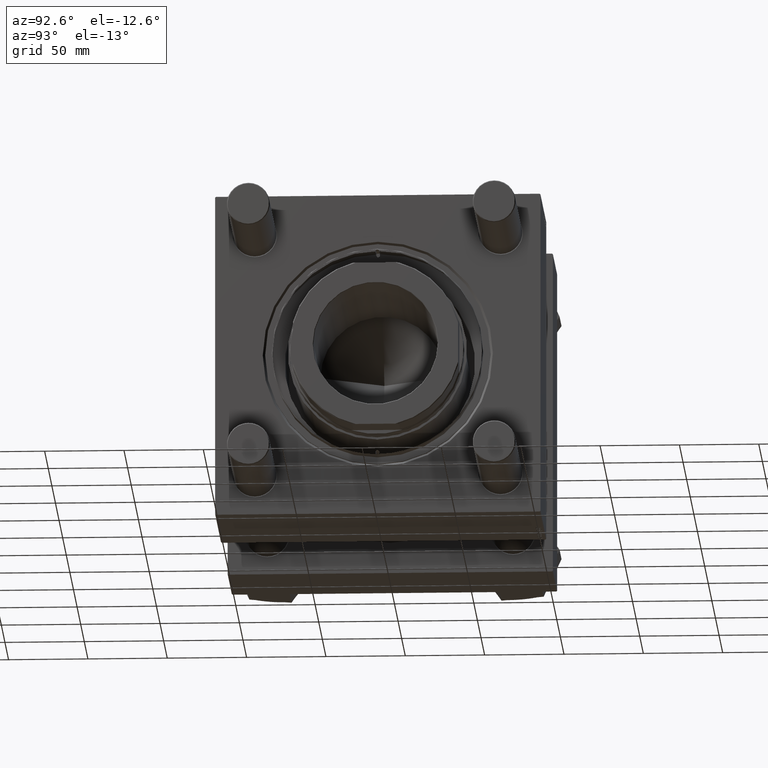
[diagram: clean part render]
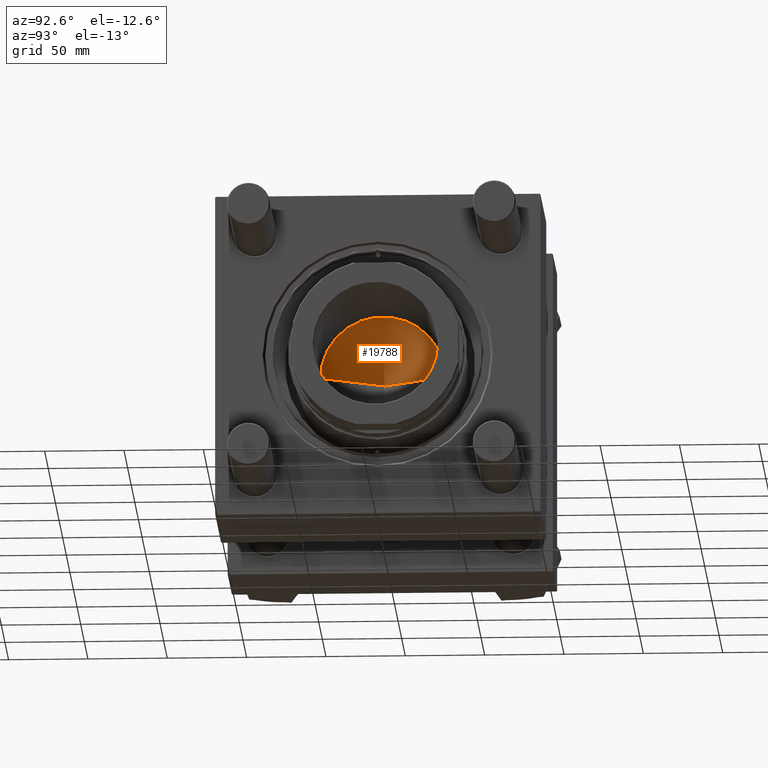
[diagram: same view with one face highlighted and labeled with its STEP entity id]
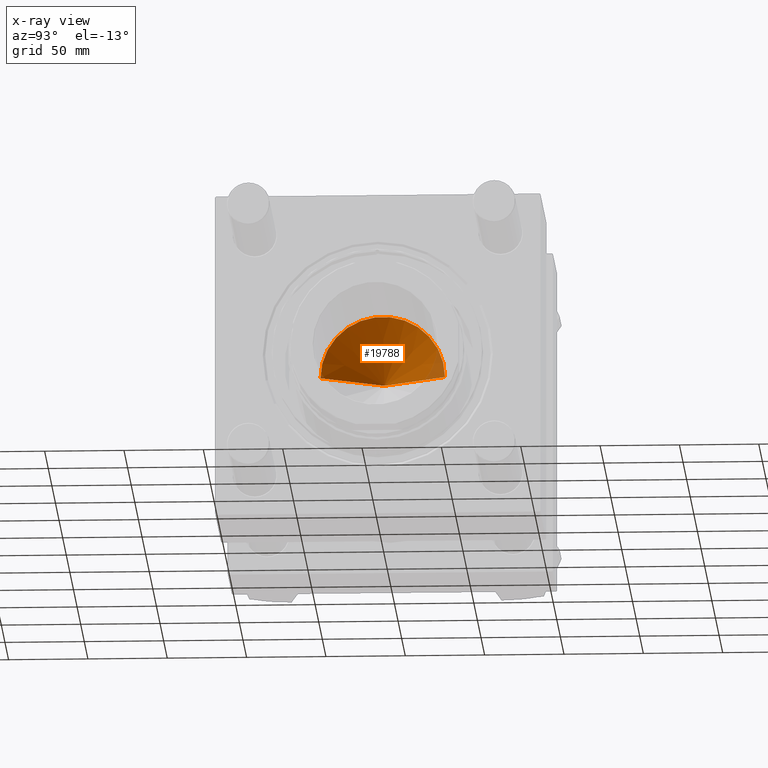
[diagram: x-ray of the same camera — body ghosted, the highlighted face saturated]
A machine part, auxiliary view. The second image highlights one B-rep face of the part: STEP entity #19788.
The next image is the same camera in x-ray: the body ghosted, the highlighted face saturated — about 5% of this face is hidden behind the body in this view.
In plain terms, the highlighted conical surface has half-angle 59 deg.
Its self-contained STEP definition (entity closure, byte-faithful):
#355 = CIRCLE ( 'NONE', #54068, 39.24999999999998579 ) ;
#2454 = ORIENTED_EDGE ( 'NONE', *, *, #3295, .F. ) ;
#3295 = EDGE_CURVE ( 'NONE', #25425, #52546, #27053, .T. ) ;
#4125 = DIRECTION ( 'NONE',  ( 0.8571673007021116675, 0.000000000000000000, 0.5150380749100552658 ) ) ;
#5022 = CARTESIAN_POINT ( 'NONE',  ( -39.24999999999998579, 4.806738686653360087E-15, 104.9999999999999858 ) ) ;
#7115 = DIRECTION ( 'NONE',  ( -0.000000000000000000, -0.000000000000000000, 1.000000000000000000 ) ) ;
#7581 = DIRECTION ( 'NONE',  ( 1.000000000000000000, 0.000000000000000000, 0.000000000000000000 ) ) ;
#7921 = AXIS2_PLACEMENT_3D ( 'NONE', #11475, #7115, #28602 ) ;
#8791 = CARTESIAN_POINT ( 'NONE',  ( 39.24999999999998579, 0.000000000000000000, 104.9999999999999858 ) ) ;
#11475 = CARTESIAN_POINT ( 'NONE',  ( 0.000000000000000000, 0.000000000000000000, 104.9999999999999858 ) ) ;
#11932 = DIRECTION ( 'NONE',  ( -0.000000000000000000, -0.000000000000000000, 1.000000000000000000 ) ) ;
#13912 = VERTEX_POINT ( 'NONE', #5022 ) ;
#15031 = EDGE_CURVE ( 'NONE', #13912, #52546, #355, .T. ) ;
#16806 = CARTESIAN_POINT ( 'NONE',  ( -39.24999999999998579, 4.806738686653360087E-15, 104.9999999999999858 ) ) ;
#19788 = ADVANCED_FACE ( 'NONE', ( #42237 ), #32932, .F. ) ;
#20945 = CARTESIAN_POINT ( 'NONE',  ( -3.318838890392715616E-14, 0.000000000000000000, 81.41622070316820725 ) ) ;
#21143 = LINE ( 'NONE', #16806, #50251 ) ;
#22430 = EDGE_LOOP ( 'NONE', ( #2454, #28802, #31456 ) ) ;
#24696 = CARTESIAN_POINT ( 'NONE',  ( 0.000000000000000000, 0.000000000000000000, 104.9999999999999858 ) ) ;
#25425 = VERTEX_POINT ( 'NONE', #20945 ) ;
#27053 = LINE ( 'NONE', #8791, #31450 ) ;
#28602 = DIRECTION ( 'NONE',  ( 1.000000000000000000, 0.000000000000000000, 0.000000000000000000 ) ) ;
#28802 = ORIENTED_EDGE ( 'NONE', *, *, #43833, .T. ) ;
#30413 = CARTESIAN_POINT ( 'NONE',  ( 39.24999999999998579, 0.000000000000000000, 104.9999999999999858 ) ) ;
#31450 = VECTOR ( 'NONE', #4125, 1000.000000000000000 ) ;
#31456 = ORIENTED_EDGE ( 'NONE', *, *, #15031, .T. ) ;
#32932 = CONICAL_SURFACE ( 'NONE', #7921, 39.24999999999998579, 1.029744258676653201 ) ;
#42237 = FACE_OUTER_BOUND ( 'NONE', #22430, .T. ) ;
#43798 = DIRECTION ( 'NONE',  ( -0.8571673007021116675, 1.049727191138617833E-16, 0.5150380749100552658 ) ) ;
#43833 = EDGE_CURVE ( 'NONE', #25425, #13912, #21143, .T. ) ;
#50251 = VECTOR ( 'NONE', #43798, 1000.000000000000000 ) ;
#52546 = VERTEX_POINT ( 'NONE', #30413 ) ;
#54068 = AXIS2_PLACEMENT_3D ( 'NONE', #24696, #11932, #7581 ) ;